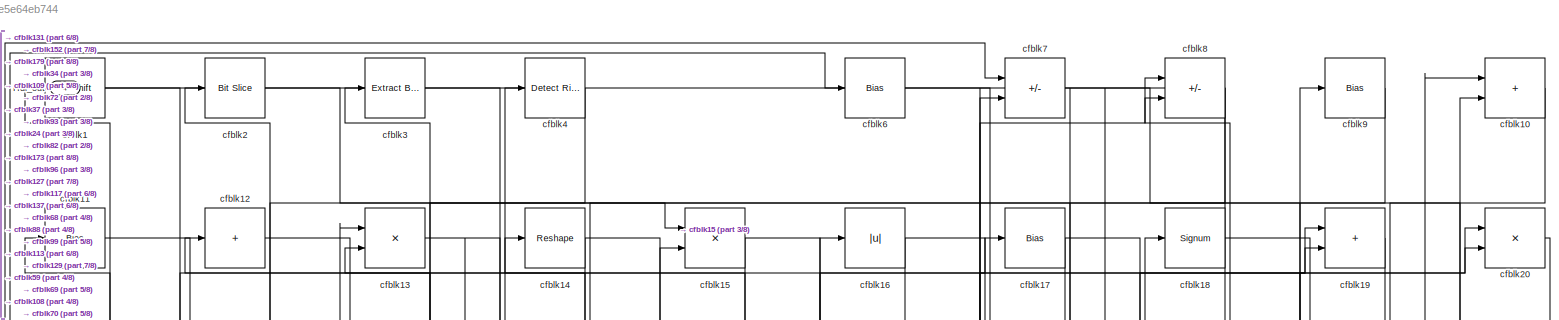
[diagram: root canvas - part 1/8, full width, top band]
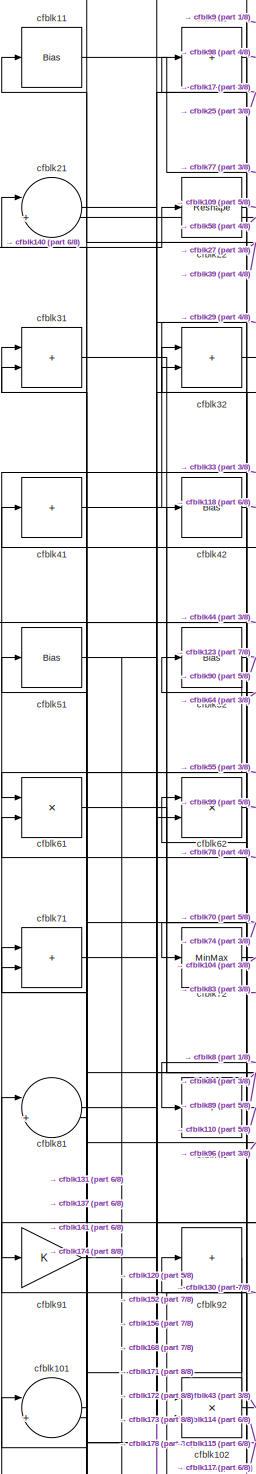
[diagram: root canvas - part 2/8, middle left region]
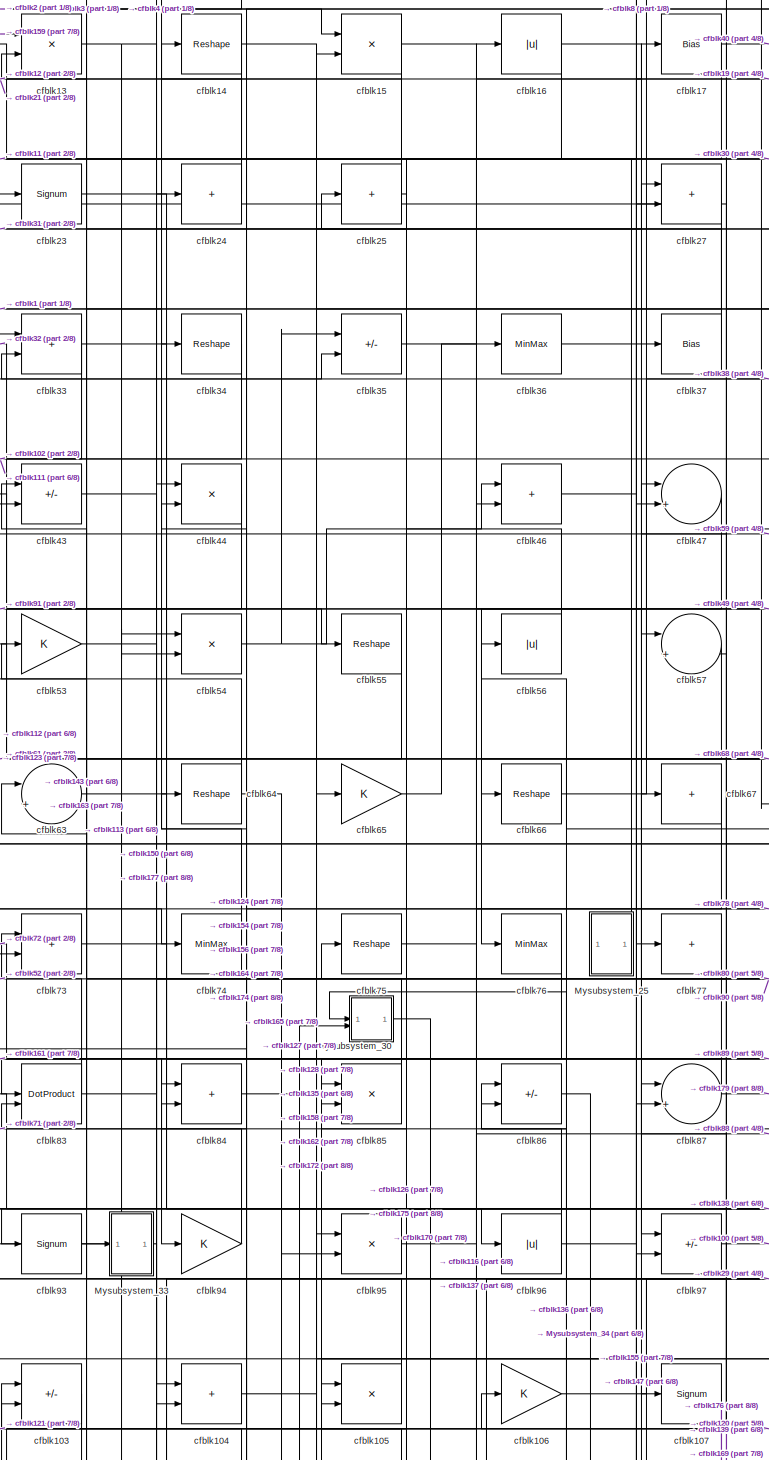
[diagram: root canvas - part 3/8, central region]
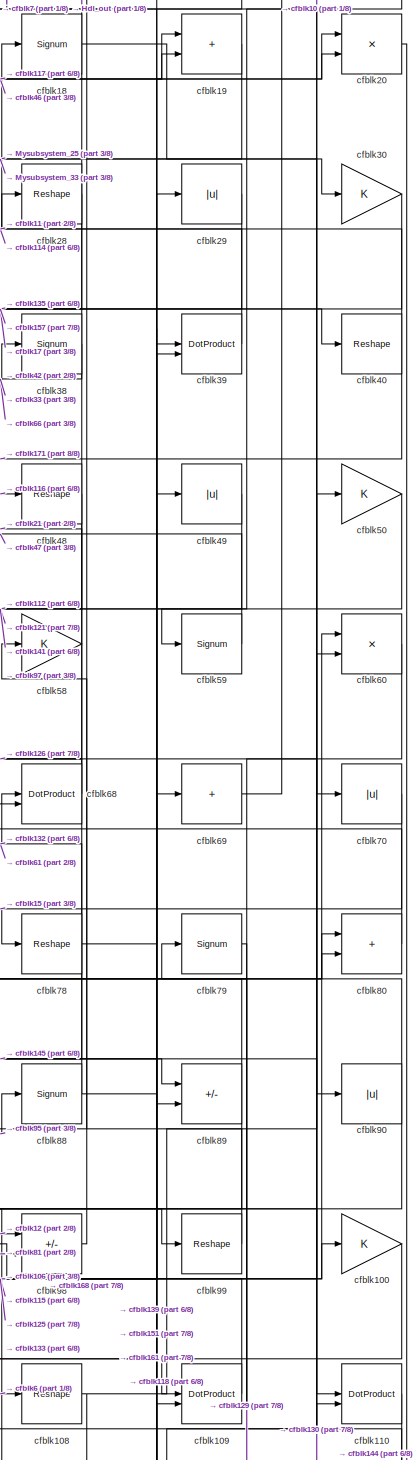
[diagram: root canvas - part 4/8, middle right region]
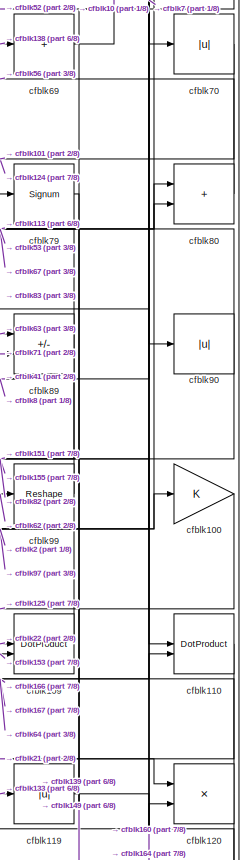
[diagram: root canvas - part 5/8, middle right region]
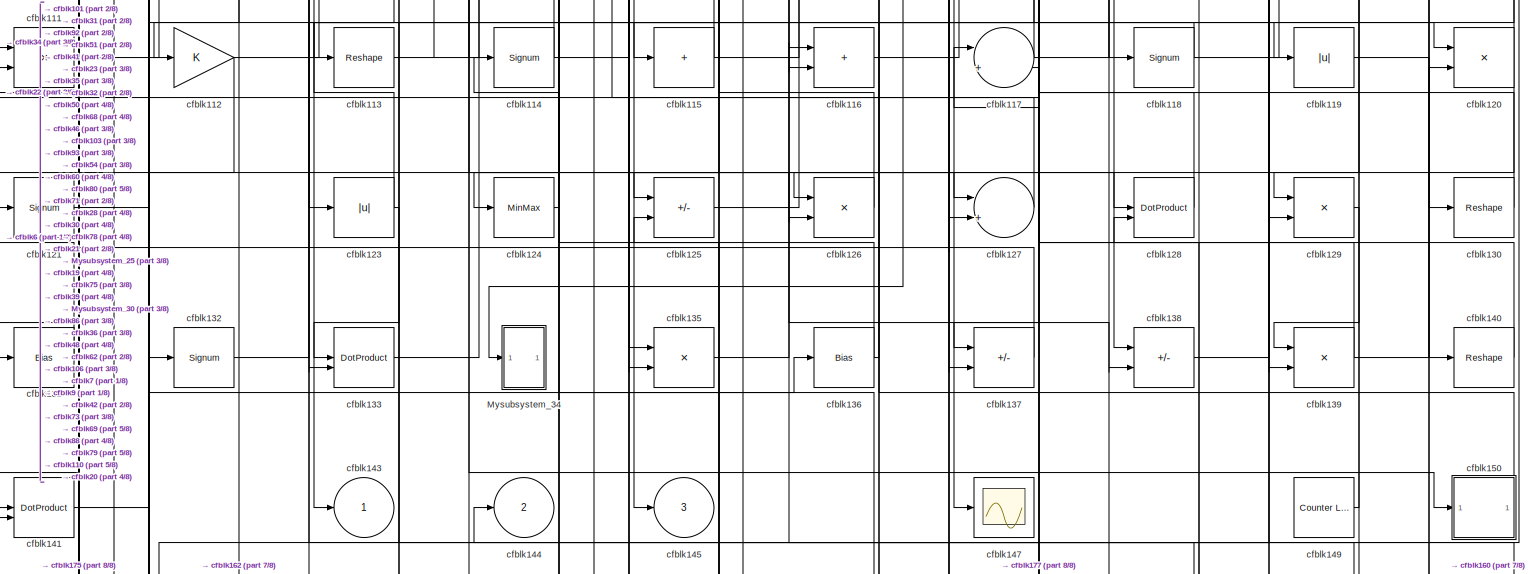
[diagram: root canvas - part 6/8, full width, bottom band]
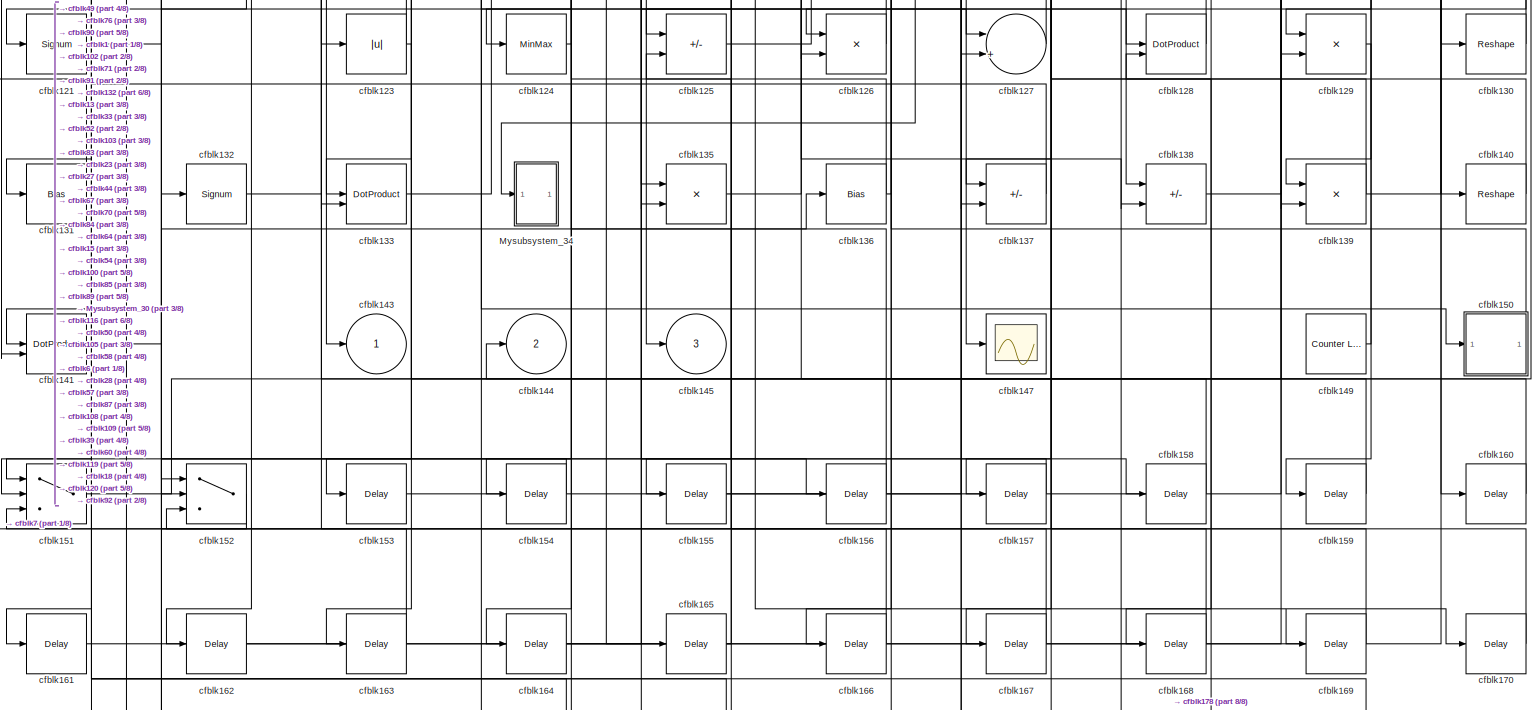
[diagram: root canvas - part 7/8, full width, bottom band]
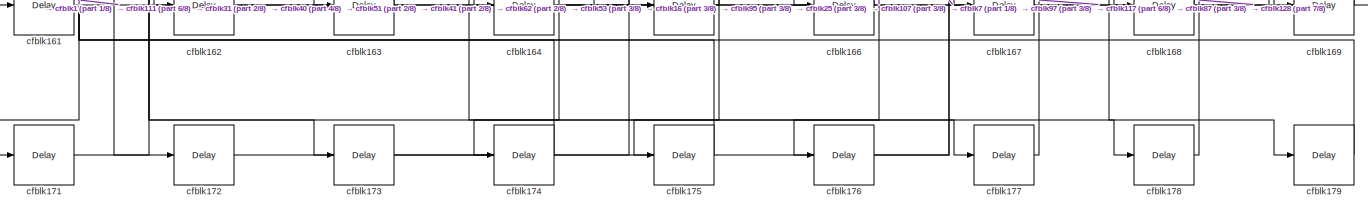
[diagram: root canvas - part 8/8, full width, bottom band]
MODEL slx_36e5e64eb744
KIND model
CONFIG AbsTol = auto
CONFIG EnableMultiTasking = off
CONFIG FixedStep = auto
CONFIG MaxStep = auto
CONFIG MinStep = auto
CONFIG RelTol = 1e-3
CONFIG SampleTimeConstraint = Unconstrained
CONFIG SolverName = VariableStepAuto
CONFIG StartTime = 0.0
CONFIG StopTime = 10.0
BLOCK [Outport] Hdl_out
  OutDataTypeStr = uint8
  Port = 4
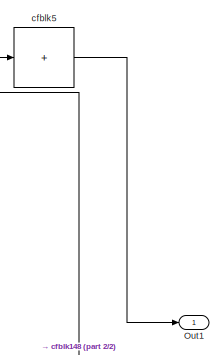
[diagram: Mysubsystem_25 - part 1/2, top left region]
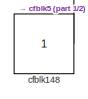
[diagram: Mysubsystem_25 - part 2/2, bottom right region]
BLOCK [SubSystem] Mysubsystem_25
  RTWFcnName = Mysubsystem_25
  RTWFcnNameOpts = User specified
  RTWFileNameOpts = Use function name
  RTWSystemCode = Reusable function
  TreatAsAtomicUnit = on
BLOCK [Outport] Mysubsystem_25/Out1
BLOCK [Constant] Mysubsystem_25/cfblk148
  SampleTime = -1
BLOCK [Sum] Mysubsystem_25/cfblk5
  IconShape = rectangular
  Inputs = +
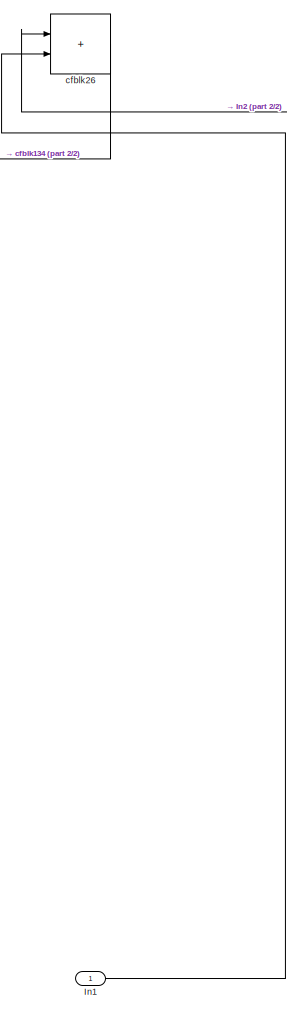
[diagram: Mysubsystem_30 - part 1/2, top center region]
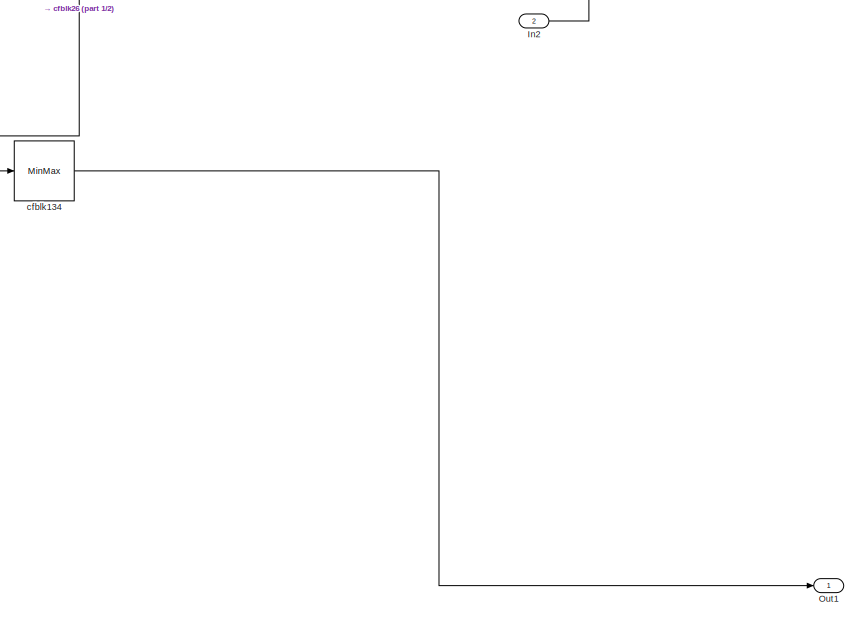
[diagram: Mysubsystem_30 - part 2/2, full width, bottom band]
BLOCK [SubSystem] Mysubsystem_30
  RTWFcnName = Mysubsystem_30
  RTWFcnNameOpts = User specified
  RTWFileNameOpts = Use function name
  RTWSystemCode = Reusable function
  TreatAsAtomicUnit = on
BLOCK [Inport] Mysubsystem_30/In1
BLOCK [Inport] Mysubsystem_30/In2
  Port = 2
BLOCK [Outport] Mysubsystem_30/Out1
BLOCK [MinMax] Mysubsystem_30/cfblk134
BLOCK [Sum] Mysubsystem_30/cfblk26
  IconShape = rectangular
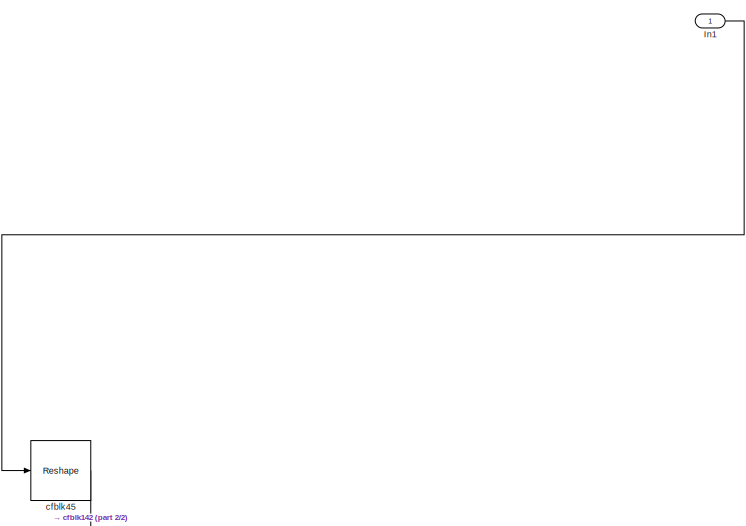
[diagram: Mysubsystem_33 - part 1/2, top right region]
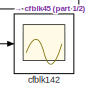
[diagram: Mysubsystem_33 - part 2/2, bottom left region]
BLOCK [SubSystem] Mysubsystem_33
  RTWFcnName = Mysubsystem_33
  RTWFcnNameOpts = User specified
  RTWFileNameOpts = Use function name
  RTWSystemCode = Reusable function
  TreatAsAtomicUnit = on
BLOCK [Inport] Mysubsystem_33/In1
BLOCK [Scope] Mysubsystem_33/cfblk142
  Floating = off
  NumInputPorts = 1
  ScopeSpecificationString = Simulink.scopes.TimeScopeBlockCfg('CurrentConfiguration', extmgr.ConfigurationSet(extmgr.Configuration('Core','General UI',true),extmgr.Configuration('Core','Source UI',true),extmgr.Configuration('Sources','WiredSimulink',true,'DataLoggingVariableName','ScopeData2','DataLoggingSaveFormat','Array','DataLoggingLimitDataPoints',true,'DataLoggingDecimation','1'),extmgr.Configuration('Visuals','Time Do...<+868ch>
BLOCK [Reshape] Mysubsystem_33/cfblk45
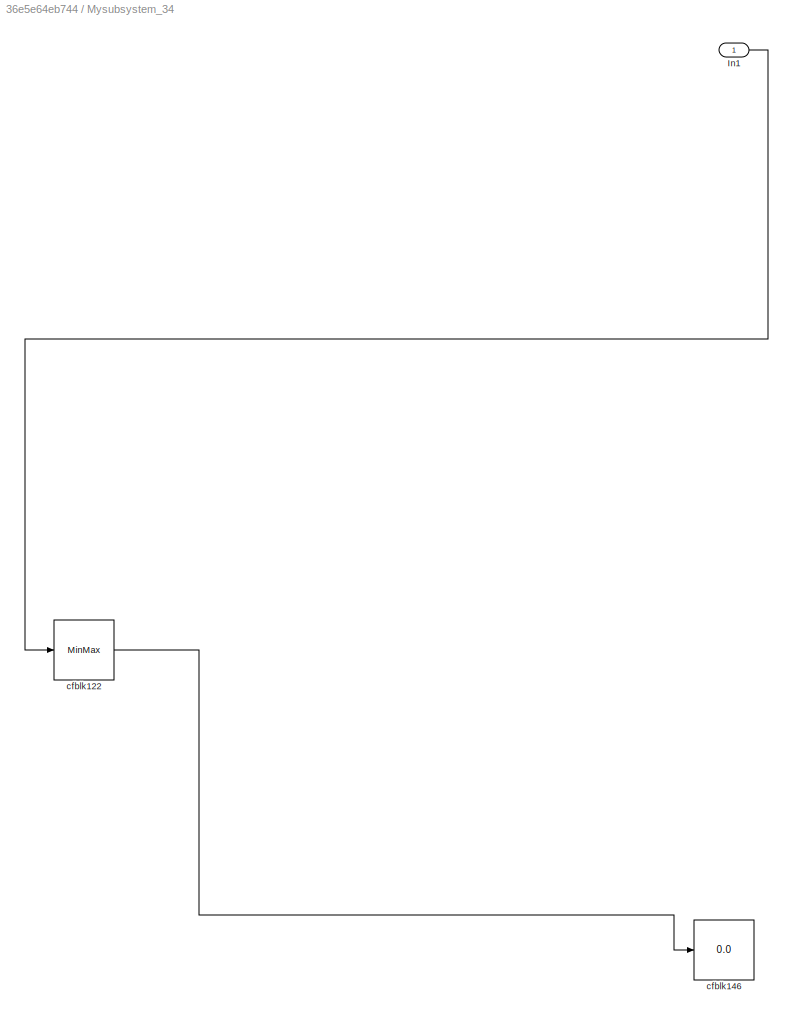
BLOCK [SubSystem] Mysubsystem_34
  RTWFcnName = Mysubsystem_34
  RTWFcnNameOpts = User specified
  RTWFileNameOpts = Use function name
  RTWSystemCode = Reusable function
  TreatAsAtomicUnit = on
BLOCK [Inport] Mysubsystem_34/In1
BLOCK [MinMax] Mysubsystem_34/cfblk122
BLOCK [Display] Mysubsystem_34/cfblk146
  Decimation = 1
BLOCK [Reference] cfblk1  REF=hdlsllib/Logic and Bit
Operations/Bit Shift
  SourceBlock = hdlsllib/Logic and Bit\nOperations/Bit Shift
  SourceType = Bit Shift
BLOCK [Sum] cfblk10
  IconShape = rectangular
  OutDataTypeStr = uint8
BLOCK [Gain] cfblk100
  OutDataTypeStr = uint8
BLOCK [Sum] cfblk101
  Inputs = |++
  OutDataTypeStr = uint8
BLOCK [Product] cfblk102
  Inputs = */
  OutDataTypeStr = uint8
  RndMeth = Zero
  SaturateOnIntegerOverflow = on
BLOCK [Sum] cfblk103
  IconShape = rectangular
  Inputs = +-
  OutDataTypeStr = uint8
BLOCK [Sum] cfblk104
  IconShape = rectangular
  OutDataTypeStr = uint8
BLOCK [Product] cfblk105
  Inputs = */
  OutDataTypeStr = uint8
  RndMeth = Zero
  SaturateOnIntegerOverflow = on
BLOCK [Gain] cfblk106
  OutDataTypeStr = uint8
BLOCK [Signum] cfblk107
BLOCK [Reshape] cfblk108
BLOCK [DotProduct] cfblk109
  OutDataTypeStr = uint8
BLOCK [Bias] cfblk11
  Bias = 0.0
  SaturateOnIntegerOverflow = off
BLOCK [DotProduct] cfblk110
  OutDataTypeStr = uint8
BLOCK [Product] cfblk111
  Inputs = */
  OutDataTypeStr = uint8
  RndMeth = Zero
  SaturateOnIntegerOverflow = on
BLOCK [Gain] cfblk112
  OutDataTypeStr = uint8
BLOCK [Reshape] cfblk113
BLOCK [Signum] cfblk114
BLOCK [Sum] cfblk115
  IconShape = rectangular
  Inputs = +
  OutDataTypeStr = uint8
BLOCK [Sum] cfblk116
  IconShape = rectangular
  OutDataTypeStr = uint8
BLOCK [Sum] cfblk117
  Inputs = |++
  OutDataTypeStr = uint8
BLOCK [Signum] cfblk118
BLOCK [Abs] cfblk119
  OutDataTypeStr = uint8
  SaturateOnIntegerOverflow = off
BLOCK [Sum] cfblk12
  IconShape = rectangular
  Inputs = +
  OutDataTypeStr = uint8
BLOCK [Product] cfblk120
  Inputs = */
  OutDataTypeStr = uint8
  RndMeth = Zero
  SaturateOnIntegerOverflow = on
BLOCK [Signum] cfblk121
BLOCK [Abs] cfblk123
  OutDataTypeStr = uint8
  SaturateOnIntegerOverflow = off
BLOCK [MinMax] cfblk124
  OutDataTypeStr = uint8
BLOCK [Sum] cfblk125
  IconShape = rectangular
  Inputs = +-
  OutDataTypeStr = uint8
BLOCK [Product] cfblk126
  Inputs = */
  OutDataTypeStr = uint8
  RndMeth = Zero
  SaturateOnIntegerOverflow = on
BLOCK [Sum] cfblk127
  Inputs = |++
  OutDataTypeStr = uint8
BLOCK [DotProduct] cfblk128
  OutDataTypeStr = uint8
BLOCK [Product] cfblk129
  Inputs = */
  OutDataTypeStr = uint8
  RndMeth = Zero
  SaturateOnIntegerOverflow = on
BLOCK [Product] cfblk13
  Inputs = */
  OutDataTypeStr = uint8
  RndMeth = Zero
  SaturateOnIntegerOverflow = on
BLOCK [Reshape] cfblk130
BLOCK [Bias] cfblk131
  Bias = 0.0
  SaturateOnIntegerOverflow = off
BLOCK [Signum] cfblk132
BLOCK [DotProduct] cfblk133
  OutDataTypeStr = uint8
BLOCK [Product] cfblk135
  Inputs = */
  OutDataTypeStr = uint8
  RndMeth = Zero
  SaturateOnIntegerOverflow = on
BLOCK [Bias] cfblk136
  Bias = 0.0
  SaturateOnIntegerOverflow = off
BLOCK [Sum] cfblk137
  IconShape = rectangular
  Inputs = +-
  OutDataTypeStr = uint8
BLOCK [Sum] cfblk138
  IconShape = rectangular
  Inputs = +-
  OutDataTypeStr = uint8
BLOCK [Product] cfblk139
  Inputs = */
  OutDataTypeStr = uint8
  RndMeth = Zero
  SaturateOnIntegerOverflow = on
BLOCK [Reshape] cfblk14
BLOCK [Reshape] cfblk140
BLOCK [DotProduct] cfblk141
  OutDataTypeStr = uint8
BLOCK [Outport] cfblk143
  OutDataTypeStr = uint8
  VectorParamsAs1DForOutWhenUnconnected = off
BLOCK [Outport] cfblk144
  OutDataTypeStr = uint8
  Port = 2
  VectorParamsAs1DForOutWhenUnconnected = off
BLOCK [Outport] cfblk145
  OutDataTypeStr = uint8
  Port = 3
  VectorParamsAs1DForOutWhenUnconnected = off
BLOCK [Scope] cfblk147
  Floating = off
  NumInputPorts = 1
  ScopeSpecificationString = Simulink.scopes.TimeScopeBlockCfg('CurrentConfiguration', extmgr.ConfigurationSet(extmgr.Configuration('Core','General UI',true),extmgr.Configuration('Core','Source UI',true),extmgr.Configuration('Sources','WiredSimulink',true,'DataLoggingVariableName','ScopeData2','DataLoggingSaveFormat','Array','DataLoggingLimitDataPoints',true,'DataLoggingDecimation','1'),extmgr.Configuration('Visuals','Time Do...<+868ch>
BLOCK [Reference] cfblk149  REF=hdlsllib/Sources/Counter
Limited
  SourceBlock = hdlsllib/Sources/Counter\nLimited
  SourceType = Counter Limited
BLOCK [Product] cfblk15
  Inputs = */
  OutDataTypeStr = uint8
  RndMeth = Zero
  SaturateOnIntegerOverflow = on
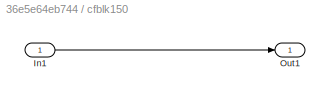
BLOCK [SubSystem] cfblk150
  LibrarySourceBlock = hdlsllib/Ports &\nSubsystems/Subsystem
BLOCK [Inport] cfblk150/In1
BLOCK [Outport] cfblk150/Out1
BLOCK [Switch] cfblk151
  InputSameDT = off
  OutDataTypeStr = uint8
  SaturateOnIntegerOverflow = off
BLOCK [Switch] cfblk152
  InputSameDT = off
  OutDataTypeStr = uint8
  SaturateOnIntegerOverflow = off
BLOCK [Delay] cfblk153
  InputPortMap = u0
  SampleTime = 1
BLOCK [Delay] cfblk154
  InputPortMap = u0
  SampleTime = 1
BLOCK [Delay] cfblk155
  InputPortMap = u0
  SampleTime = 1
BLOCK [Delay] cfblk156
  InputPortMap = u0
  SampleTime = 1
BLOCK [Delay] cfblk157
  InputPortMap = u0
  SampleTime = 1
BLOCK [Delay] cfblk158
  InputPortMap = u0
  SampleTime = 1
BLOCK [Delay] cfblk159
  InputPortMap = u0
  SampleTime = 1
BLOCK [Abs] cfblk16
  OutDataTypeStr = uint8
  SaturateOnIntegerOverflow = off
BLOCK [Delay] cfblk160
  InputPortMap = u0
  SampleTime = 1
BLOCK [Delay] cfblk161
  InputPortMap = u0
  SampleTime = 1
BLOCK [Delay] cfblk162
  InputPortMap = u0
  SampleTime = 1
BLOCK [Delay] cfblk163
  InputPortMap = u0
  SampleTime = 1
BLOCK [Delay] cfblk164
  InputPortMap = u0
  SampleTime = 1
BLOCK [Delay] cfblk165
  InputPortMap = u0
  SampleTime = 1
BLOCK [Delay] cfblk166
  InputPortMap = u0
  SampleTime = 1
BLOCK [Delay] cfblk167
  InputPortMap = u0
  SampleTime = 1
BLOCK [Delay] cfblk168
  InputPortMap = u0
  SampleTime = 1
BLOCK [Delay] cfblk169
  InputPortMap = u0
  SampleTime = 1
BLOCK [Bias] cfblk17
  Bias = 0.0
  SaturateOnIntegerOverflow = off
BLOCK [Delay] cfblk170
  InputPortMap = u0
  SampleTime = 1
BLOCK [Delay] cfblk171
  InputPortMap = u0
  SampleTime = 1
BLOCK [Delay] cfblk172
  InputPortMap = u0
  SampleTime = 1
BLOCK [Delay] cfblk173
  InputPortMap = u0
  SampleTime = 1
BLOCK [Delay] cfblk174
  InputPortMap = u0
  SampleTime = 1
BLOCK [Delay] cfblk175
  InputPortMap = u0
  SampleTime = 1
BLOCK [Delay] cfblk176
  InputPortMap = u0
  SampleTime = 1
BLOCK [Delay] cfblk177
  InputPortMap = u0
  SampleTime = 1
BLOCK [Delay] cfblk178
  InputPortMap = u0
  SampleTime = 1
BLOCK [Delay] cfblk179
  InputPortMap = u0
  SampleTime = 1
BLOCK [Signum] cfblk18
BLOCK [Sum] cfblk19
  IconShape = rectangular
  OutDataTypeStr = uint8
BLOCK [Reference] cfblk2  REF=hdlsllib/Logic and Bit
Operations/Bit Slice
  SourceBlock = hdlsllib/Logic and Bit\nOperations/Bit Slice
  SourceType = Bit Slice
BLOCK [Product] cfblk20
  Inputs = */
  OutDataTypeStr = uint8
  RndMeth = Zero
  SaturateOnIntegerOverflow = on
BLOCK [Sum] cfblk21
  Inputs = |++
  OutDataTypeStr = uint8
BLOCK [Reshape] cfblk22
BLOCK [Signum] cfblk23
BLOCK [Sum] cfblk24
  IconShape = rectangular
  Inputs = +
  OutDataTypeStr = uint8
BLOCK [Sum] cfblk25
  IconShape = rectangular
  Inputs = +
  OutDataTypeStr = uint8
BLOCK [Sum] cfblk27
  IconShape = rectangular
  OutDataTypeStr = uint8
BLOCK [Reshape] cfblk28
BLOCK [Abs] cfblk29
  OutDataTypeStr = uint8
  SaturateOnIntegerOverflow = off
BLOCK [Reference] cfblk3  REF=simulink/Logic and Bit
Operations/Extract Bits
  LibrarySourceBlock = hdlsllib/Logic and Bit\nOperations/Extract Bits
  SourceBlock = simulink/Logic and Bit\nOperations/Extract Bits
  SourceType = Extract Bits
BLOCK [Gain] cfblk30
  OutDataTypeStr = uint8
BLOCK [Sum] cfblk31
  IconShape = rectangular
  OutDataTypeStr = uint8
BLOCK [Sum] cfblk32
  IconShape = rectangular
  OutDataTypeStr = uint8
BLOCK [Sum] cfblk33
  IconShape = rectangular
  OutDataTypeStr = uint8
BLOCK [Reshape] cfblk34
BLOCK [Sum] cfblk35
  IconShape = rectangular
  Inputs = +-
  OutDataTypeStr = uint8
BLOCK [MinMax] cfblk36
  OutDataTypeStr = uint8
BLOCK [Bias] cfblk37
  Bias = 0.0
  SaturateOnIntegerOverflow = off
BLOCK [Signum] cfblk38
BLOCK [DotProduct] cfblk39
  OutDataTypeStr = uint8
BLOCK [Reference] cfblk4  REF=hdlsllib/Logic and Bit
Operations/Detect Rise
Nonnegative
  SourceBlock = hdlsllib/Logic and Bit\nOperations/Detect Rise\nNonnegative
  SourceType = Detect Rise Nonnegative
BLOCK [Reshape] cfblk40
BLOCK [Sum] cfblk41
  IconShape = rectangular
  Inputs = +
  OutDataTypeStr = uint8
BLOCK [Bias] cfblk42
  Bias = 0.0
  SaturateOnIntegerOverflow = off
BLOCK [Sum] cfblk43
  IconShape = rectangular
  Inputs = +-
  OutDataTypeStr = uint8
BLOCK [Product] cfblk44
  Inputs = */
  OutDataTypeStr = uint8
  RndMeth = Zero
  SaturateOnIntegerOverflow = on
BLOCK [Sum] cfblk46
  IconShape = rectangular
  OutDataTypeStr = uint8
BLOCK [Sum] cfblk47
  Inputs = |++
  OutDataTypeStr = uint8
BLOCK [Reshape] cfblk48
BLOCK [Abs] cfblk49
  OutDataTypeStr = uint8
  SaturateOnIntegerOverflow = off
BLOCK [Gain] cfblk50
  OutDataTypeStr = uint8
BLOCK [Bias] cfblk51
  Bias = 0.0
  SaturateOnIntegerOverflow = off
BLOCK [Bias] cfblk52
  Bias = 0.0
  SaturateOnIntegerOverflow = off
BLOCK [Gain] cfblk53
  OutDataTypeStr = uint8
BLOCK [Product] cfblk54
  Inputs = */
  OutDataTypeStr = uint8
  RndMeth = Zero
  SaturateOnIntegerOverflow = on
BLOCK [Reshape] cfblk55
BLOCK [Abs] cfblk56
  OutDataTypeStr = uint8
  SaturateOnIntegerOverflow = off
BLOCK [Sum] cfblk57
  Inputs = |++
  OutDataTypeStr = uint8
BLOCK [Gain] cfblk58
  OutDataTypeStr = uint8
BLOCK [Signum] cfblk59
BLOCK [Bias] cfblk6
  Bias = 0.0
  SaturateOnIntegerOverflow = off
BLOCK [Product] cfblk60
  Inputs = */
  OutDataTypeStr = uint8
  RndMeth = Zero
  SaturateOnIntegerOverflow = on
BLOCK [Product] cfblk61
  Inputs = */
  OutDataTypeStr = uint8
  RndMeth = Zero
  SaturateOnIntegerOverflow = on
BLOCK [Product] cfblk62
  Inputs = */
  OutDataTypeStr = uint8
  RndMeth = Zero
  SaturateOnIntegerOverflow = on
BLOCK [Sum] cfblk63
  Inputs = |++
  OutDataTypeStr = uint8
BLOCK [Reshape] cfblk64
BLOCK [Gain] cfblk65
  OutDataTypeStr = uint8
BLOCK [Reshape] cfblk66
BLOCK [Sum] cfblk67
  IconShape = rectangular
  Inputs = +
  OutDataTypeStr = uint8
BLOCK [DotProduct] cfblk68
  OutDataTypeStr = uint8
BLOCK [Sum] cfblk69
  IconShape = rectangular
  Inputs = +
  OutDataTypeStr = uint8
BLOCK [Sum] cfblk7
  IconShape = rectangular
  Inputs = +-
  OutDataTypeStr = uint8
BLOCK [Abs] cfblk70
  OutDataTypeStr = uint8
  SaturateOnIntegerOverflow = off
BLOCK [Sum] cfblk71
  IconShape = rectangular
  OutDataTypeStr = uint8
BLOCK [MinMax] cfblk72
  OutDataTypeStr = uint8
BLOCK [Sum] cfblk73
  IconShape = rectangular
  OutDataTypeStr = uint8
BLOCK [MinMax] cfblk74
  OutDataTypeStr = uint8
BLOCK [Reshape] cfblk75
BLOCK [MinMax] cfblk76
  OutDataTypeStr = uint8
BLOCK [Sum] cfblk77
  IconShape = rectangular
  Inputs = +
  OutDataTypeStr = uint8
BLOCK [Reshape] cfblk78
BLOCK [Signum] cfblk79
BLOCK [Sum] cfblk8
  IconShape = rectangular
  Inputs = +-
  OutDataTypeStr = uint8
BLOCK [Sum] cfblk80
  IconShape = rectangular
  OutDataTypeStr = uint8
BLOCK [Sum] cfblk81
  Inputs = |++
  OutDataTypeStr = uint8
BLOCK [Sum] cfblk82
  IconShape = rectangular
  Inputs = +
  OutDataTypeStr = uint8
BLOCK [DotProduct] cfblk83
  OutDataTypeStr = uint8
BLOCK [Sum] cfblk84
  IconShape = rectangular
  OutDataTypeStr = uint8
BLOCK [Product] cfblk85
  Inputs = */
  OutDataTypeStr = uint8
  RndMeth = Zero
  SaturateOnIntegerOverflow = on
BLOCK [Sum] cfblk86
  IconShape = rectangular
  Inputs = +-
  OutDataTypeStr = uint8
BLOCK [Sum] cfblk87
  Inputs = |++
  OutDataTypeStr = uint8
BLOCK [Signum] cfblk88
BLOCK [Sum] cfblk89
  IconShape = rectangular
  Inputs = +-
  OutDataTypeStr = uint8
BLOCK [Bias] cfblk9
  Bias = 0.0
  SaturateOnIntegerOverflow = off
BLOCK [Abs] cfblk90
  OutDataTypeStr = uint8
  SaturateOnIntegerOverflow = off
BLOCK [Gain] cfblk91
  OutDataTypeStr = uint8
BLOCK [Sum] cfblk92
  IconShape = rectangular
  Inputs = +
  OutDataTypeStr = uint8
BLOCK [Signum] cfblk93
BLOCK [Gain] cfblk94
  OutDataTypeStr = uint8
BLOCK [Product] cfblk95
  Inputs = */
  OutDataTypeStr = uint8
  RndMeth = Zero
  SaturateOnIntegerOverflow = on
BLOCK [Abs] cfblk96
  OutDataTypeStr = uint8
  SaturateOnIntegerOverflow = off
BLOCK [Sum] cfblk97
  IconShape = rectangular
  Inputs = +-
  OutDataTypeStr = uint8
BLOCK [Sum] cfblk98
  IconShape = rectangular
  Inputs = +-
  OutDataTypeStr = uint8
BLOCK [Reshape] cfblk99
LINE Mysubsystem_25/cfblk148:1 -> Mysubsystem_25/cfblk5:1
LINE Mysubsystem_25/cfblk5:1 -> Mysubsystem_25/Out1:1
NET Mysubsystem_25:1 -> cfblk137:2, cfblk30:1
LINE Mysubsystem_30/In1:1 -> Mysubsystem_30/cfblk26:2
LINE Mysubsystem_30/In2:1 -> Mysubsystem_30/cfblk26:1
LINE Mysubsystem_30/cfblk134:1 -> Mysubsystem_30/Out1:1
LINE Mysubsystem_30/cfblk26:1 -> Mysubsystem_30/cfblk134:1
NET Mysubsystem_30:1 -> cfblk169:1, cfblk170:1
LINE Mysubsystem_33/In1:1 -> Mysubsystem_33/cfblk45:1
LINE Mysubsystem_33/cfblk45:1 -> Mysubsystem_33/cfblk142:1
LINE Mysubsystem_34/In1:1 -> Mysubsystem_34/cfblk122:1
LINE Mysubsystem_34/cfblk122:1 -> Mysubsystem_34/cfblk146:1
LINE cfblk100:1 -> cfblk125:1
LINE cfblk101:1 -> cfblk51:1
NET cfblk102:1 -> cfblk43:2, cfblk81:1
LINE cfblk103:1 -> cfblk143:1
LINE cfblk104:1 -> cfblk65:1
LINE cfblk105:1 -> cfblk63:1
LINE cfblk106:1 -> cfblk29:1
LINE cfblk107:1 -> cfblk176:1
NET cfblk108:1 -> cfblk10:2, cfblk168:1
LINE cfblk109:1 -> cfblk2:1
LINE cfblk10:1 -> cfblk59:1
NET cfblk110:1 -> cfblk119:1, cfblk133:1, cfblk133:2
NET cfblk111:1 -> cfblk23:1, cfblk35:2
NET cfblk112:1 -> cfblk141:1, cfblk46:2
NET cfblk113:1 -> cfblk54:1, cfblk80:1, cfblk9:1
NET cfblk114:1 -> cfblk28:1, cfblk71:2
NET cfblk115:1 -> cfblk21:1, cfblk39:1
LINE cfblk116:1 -> cfblk48:1
NET cfblk117:1 -> cfblk20:1, cfblk62:1
NET cfblk118:1 -> cfblk113:1, cfblk60:2
LINE cfblk119:1 -> cfblk160:1
LINE cfblk11:1 -> cfblk77:1
NET cfblk120:1 -> cfblk166:1, cfblk167:1, cfblk64:1
LINE cfblk121:1 -> cfblk103:2
NET cfblk123:1 -> cfblk103:1, cfblk153:1
LINE cfblk124:1 -> cfblk84:2
LINE cfblk125:1 -> cfblk50:1
LINE cfblk126:1 -> cfblk105:2
LINE cfblk127:1 -> Mysubsystem_30:2
LINE cfblk128:1 -> cfblk87:1
LINE cfblk129:1 -> cfblk159:1
LINE cfblk12:1 -> cfblk98:1
LINE cfblk130:1 -> cfblk92:1
LINE cfblk131:1 -> cfblk6:1
NET cfblk132:1 -> cfblk162:1, cfblk32:2, cfblk68:1
LINE cfblk133:1 -> cfblk60:1
LINE cfblk135:1 -> cfblk19:1
NET cfblk136:1 -> cfblk114:1, cfblk86:2
LINE cfblk137:1 -> cfblk101:1
LINE cfblk138:1 -> cfblk69:1
NET cfblk139:1 -> cfblk106:1, cfblk110:2, cfblk73:1
NET cfblk13:1 -> cfblk44:1, cfblk54:2
LINE cfblk140:1 -> cfblk22:1
NET cfblk141:1 -> cfblk136:1, cfblk31:1
LINE cfblk149:1 -> cfblk79:1
NET cfblk14:1 -> cfblk27:2, cfblk63:2
LINE cfblk150/In1:1 -> cfblk150/Out1:1
NET cfblk150:1 -> Mysubsystem_30:1, cfblk86:1
LINE cfblk151:1 -> cfblk49:1
LINE cfblk152:1 -> cfblk7:1
LINE cfblk153:1 -> cfblk109:2
LINE cfblk154:1 -> cfblk152:2
LINE cfblk155:1 -> cfblk87:2
LINE cfblk156:1 -> cfblk44:2
LINE cfblk157:1 -> cfblk151:2
LINE cfblk158:1 -> cfblk83:2
LINE cfblk159:1 -> cfblk13:1
NET cfblk15:1 -> cfblk57:1, cfblk73:2, cfblk78:1
LINE cfblk160:1 -> cfblk116:1
LINE cfblk161:1 -> cfblk39:2
LINE cfblk162:1 -> cfblk15:2
LINE cfblk163:1 -> cfblk33:1
LINE cfblk164:1 -> cfblk120:2
LINE cfblk165:1 -> cfblk85:2
LINE cfblk166:1 -> cfblk152:3
LINE cfblk167:1 -> cfblk125:2
LINE cfblk168:1 -> cfblk102:1
LINE cfblk169:1 -> cfblk57:2
NET cfblk16:1 -> cfblk174:1, cfblk37:1
LINE cfblk170:1 -> cfblk151:3
LINE cfblk171:1 -> cfblk62:2
LINE cfblk172:1 -> cfblk95:1
LINE cfblk173:1 -> cfblk7:2
LINE cfblk174:1 -> cfblk31:2
LINE cfblk175:1 -> cfblk111:2
LINE cfblk176:1 -> cfblk97:2
LINE cfblk177:1 -> cfblk117:1
LINE cfblk178:1 -> cfblk128:2
LINE cfblk179:1 -> cfblk1:1
NET cfblk17:1 -> cfblk105:1, cfblk40:1
LINE cfblk18:1 -> cfblk130:1
LINE cfblk19:1 -> Mysubsystem_33:1
NET cfblk1:1 -> cfblk127:1, cfblk34:1
LINE cfblk20:1 -> cfblk144:1
NET cfblk21:1 -> cfblk120:1, cfblk17:1
LINE cfblk22:1 -> cfblk109:1
NET cfblk23:1 -> cfblk128:1, cfblk135:1
LINE cfblk24:1 -> cfblk4:1
NET cfblk25:1 -> cfblk12:1, cfblk175:1
NET cfblk27:1 -> cfblk163:1, cfblk164:1
LINE cfblk28:1 -> cfblk157:1
LINE cfblk29:1 -> cfblk42:1
LINE cfblk2:1 -> cfblk15:1
LINE cfblk30:1 -> cfblk135:2
NET cfblk31:1 -> cfblk27:1, cfblk84:1
LINE cfblk32:1 -> cfblk55:1
NET cfblk33:1 -> cfblk102:2, cfblk96:1
LINE cfblk34:1 -> cfblk111:1
LINE cfblk35:1 -> cfblk16:1
NET cfblk36:1 -> cfblk138:2, cfblk147:1
LINE cfblk37:1 -> cfblk3:1
LINE cfblk38:1 -> cfblk33:2
LINE cfblk39:1 -> cfblk11:1
LINE cfblk3:1 -> cfblk24:1
NET cfblk40:1 -> cfblk171:1, cfblk18:1
NET cfblk41:1 -> cfblk140:1, cfblk178:1
LINE cfblk42:1 -> cfblk118:1
LINE cfblk43:1 -> cfblk104:2
LINE cfblk44:1 -> cfblk91:1
NET cfblk46:1 -> cfblk19:2, cfblk47:2
LINE cfblk47:1 -> cfblk76:1
LINE cfblk48:1 -> cfblk115:1
NET cfblk49:1 -> cfblk121:1, cfblk97:1
LINE cfblk4:1 -> cfblk93:1
NET cfblk50:1 -> cfblk112:1, cfblk141:2
NET cfblk51:1 -> cfblk132:1, cfblk172:1, cfblk173:1
NET cfblk52:1 -> cfblk123:1, cfblk81:2, cfblk90:1
LINE cfblk53:1 -> cfblk177:1
NET cfblk54:1 -> cfblk126:2, cfblk35:1, cfblk46:1
LINE cfblk55:1 -> cfblk61:1
LINE cfblk56:1 -> cfblk25:1
LINE cfblk57:1 -> cfblk83:1
NET cfblk58:1 -> cfblk126:1, cfblk21:2
LINE cfblk59:1 -> cfblk47:1
LINE cfblk60:1 -> cfblk129:1
LINE cfblk61:1 -> cfblk74:1
LINE cfblk62:1 -> cfblk99:1
LINE cfblk63:1 -> cfblk89:1
NET cfblk64:1 -> cfblk165:1, cfblk32:1
LINE cfblk65:1 -> cfblk36:1
LINE cfblk66:1 -> cfblk38:1
LINE cfblk67:1 -> cfblk154:1
LINE cfblk68:1 -> cfblk66:1
LINE cfblk69:1 -> cfblk10:1
NET cfblk6:1 -> cfblk108:1, cfblk127:2
NET cfblk70:1 -> cfblk101:2, cfblk124:1
NET cfblk71:1 -> cfblk156:1, cfblk89:2
LINE cfblk72:1 -> cfblk104:1
LINE cfblk73:1 -> cfblk138:1
LINE cfblk74:1 -> cfblk14:1
LINE cfblk75:1 -> cfblk116:2
LINE cfblk76:1 -> cfblk161:1
LINE cfblk77:1 -> cfblk94:1
NET cfblk78:1 -> cfblk145:1, cfblk20:2, cfblk61:2
LINE cfblk79:1 -> cfblk139:1
NET cfblk7:1 -> cfblk117:2, cfblk129:2, cfblk68:2, cfblk70:1
LINE cfblk80:1 -> cfblk56:1
LINE cfblk81:1 -> cfblk98:2
LINE cfblk82:1 -> cfblk110:1
NET cfblk83:1 -> cfblk52:1, cfblk80:2
NET cfblk84:1 -> cfblk107:1, cfblk158:1, cfblk95:2
NET cfblk85:1 -> cfblk43:1, cfblk75:1
LINE cfblk86:1 -> Mysubsystem_34:1
NET cfblk87:1 -> cfblk179:1, cfblk85:1
NET cfblk88:1 -> Hdl_out:1, cfblk139:2
NET cfblk89:1 -> cfblk155:1, cfblk67:1
LINE cfblk8:1 -> cfblk82:1
NET cfblk90:1 -> cfblk151:1, cfblk53:1
LINE cfblk91:1 -> cfblk152:1
LINE cfblk92:1 -> cfblk131:1
LINE cfblk93:1 -> cfblk150:1
LINE cfblk94:1 -> cfblk13:2
LINE cfblk95:1 -> cfblk88:1
NET cfblk96:1 -> cfblk71:1, cfblk8:2
LINE cfblk97:1 -> cfblk100:1
LINE cfblk98:1 -> cfblk58:1
NET cfblk99:1 -> cfblk41:1, cfblk8:1
NET cfblk9:1 -> cfblk137:1, cfblk72:1
note: NET lines group one-source signal fan-out (src -> all destinations, sorted); 1:1 wires keep LINE
